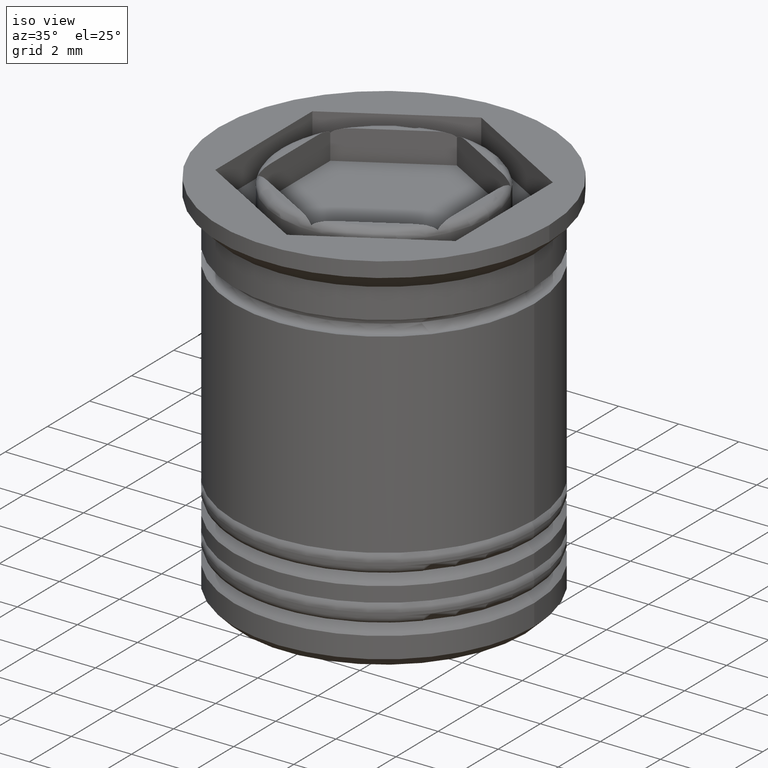
[diagram: clean part render]
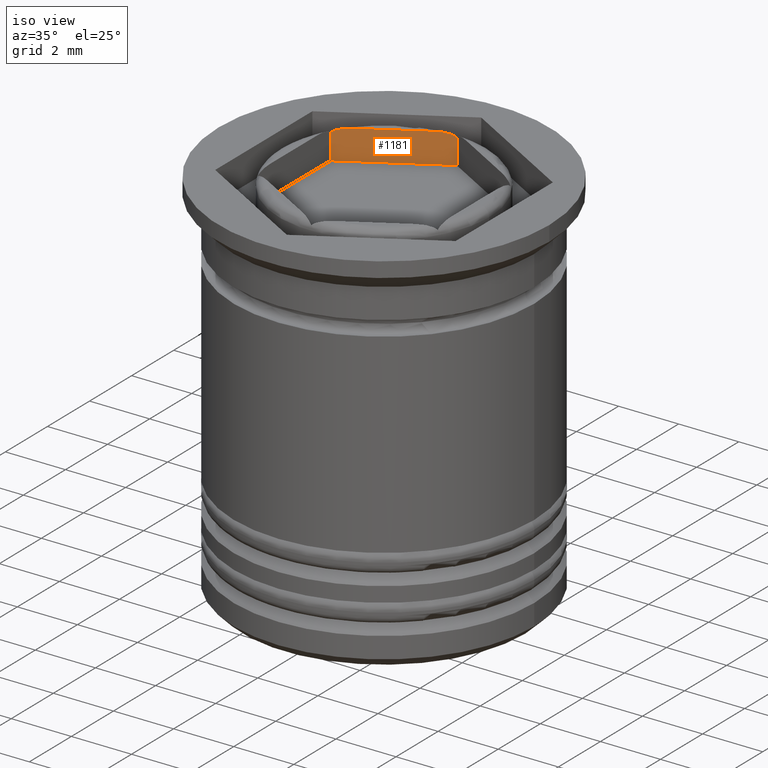
[diagram: same view with one face highlighted and labeled with its STEP entity id]
A machine part, iso view. The second image highlights one B-rep face of the part: STEP entity #1181.
In plain terms, the highlighted planar face has unit normal (-0.5, 0.866, 0).
Its self-contained STEP definition (entity closure, byte-faithful):
#19 = PLANE ( 'NONE',  #1641 ) ;
#28 = CARTESIAN_POINT ( 'NONE',  ( -3.000000000000000000, 1.732050807568877859, -10.16515138991168321 ) ) ;
#46 = DIRECTION ( 'NONE',  ( -0.000000000000000000, -0.000000000000000000, 1.000000000000000000 ) ) ;
#98 = ORIENTED_EDGE ( 'NONE', *, *, #231, .T. ) ;
#100 = CARTESIAN_POINT ( 'NONE',  ( -0.3467826759321240293, 3.263886543838044663, -0.006718191919573663837 ) ) ;
#201 = DIRECTION ( 'NONE',  ( -0.8660254037844387076, -0.4999999999999999445, 0.000000000000000000 ) ) ;
#202 = VERTEX_POINT ( 'NONE', #1986 ) ;
#231 = EDGE_CURVE ( 'NONE', #399, #1537, #539, .T. ) ;
#363 = DIRECTION ( 'NONE',  ( -0.000000000000000000, -0.000000000000000000, 1.000000000000000000 ) ) ;
#365 = CARTESIAN_POINT ( 'NONE',  ( -2.965112866681730797, 1.752192903381435851, -0.1203145750809058168 ) ) ;
#387 = VECTOR ( 'NONE', #363, 1000.000000000000000 ) ;
#399 = VERTEX_POINT ( 'NONE', #1883 ) ;
#400 = CARTESIAN_POINT ( 'NONE',  ( -0.03499328590478502365, 3.443898232100797596, -0.1202008320270840092 ) ) ;
#413 = VECTOR ( 'NONE', #921, 999.9999999999998863 ) ;
#492 = B_SPLINE_CURVE_WITH_KNOTS ( 'NONE', 3,
 ( #1490, #688, #1337, #1966, #545, #1028, #365, #1673 ),
 .UNSPECIFIED., .F., .F.,
 ( 4, 2, 2, 4 ),
 ( 1.693691732042781777E-20, 0.0003251077594065942926, 0.0004876616391098914389, 0.0006502155188131885852 ),
 .UNSPECIFIED. ) ;
#530 = ORIENTED_EDGE ( 'NONE', *, *, #1682, .F. ) ;
#539 = LINE ( 'NONE', #548, #1307 ) ;
#543 = CARTESIAN_POINT ( 'NONE',  ( -0.5356349239007045515, 3.154852647636318785, 0.000000000000000000 ) ) ;
#545 = CARTESIAN_POINT ( 'NONE',  ( -2.836116908067597198, 1.826668754811678452, -0.05305027761685764814 ) ) ;
#548 = CARTESIAN_POINT ( 'NONE',  ( -2.168404344971008868E-16, 3.464101615137754830, -10.16515138991168321 ) ) ;
#675 = EDGE_CURVE ( 'NONE', #1656, #1578, #492, .T. ) ;
#688 = CARTESIAN_POINT ( 'NONE',  ( -2.558504986048359964, 1.986948072719734837, -1.905824131322174993E-18 ) ) ;
#753 = CARTESIAN_POINT ( 'NONE',  ( -0.4414355163307774332, 3.209238700954318624, 8.506328372801310169E-16 ) ) ;
#772 = LINE ( 'NONE', #2048, #413 ) ;
#779 = ORIENTED_EDGE ( 'NONE', *, *, #1917, .T. ) ;
#883 = CARTESIAN_POINT ( 'NONE',  ( -0.07639347113135709633, 3.419995824015736208, -0.09422876642215748111 ) ) ;
#905 = CARTESIAN_POINT ( 'NONE',  ( -0.2090904032211537422, 3.343383214553053762, -0.03872241999869841661 ) ) ;
#921 = DIRECTION ( 'NONE',  ( 0.8660254037844387076, 0.4999999999999999445, -0.000000000000000000 ) ) ;
#1028 = CARTESIAN_POINT ( 'NONE',  ( -2.923120587309835372, 1.776437157180684512, -0.09397729767315254890 ) ) ;
#1082 = EDGE_CURVE ( 'NONE', #202, #399, #772, .T. ) ;
#1130 = DIRECTION ( 'NONE',  ( -0.8660254037844385966, -0.4999999999999998890, 0.000000000000000000 ) ) ;
#1159 = LINE ( 'NONE', #1478, #1711 ) ;
#1164 = DIRECTION ( 'NONE',  ( -0.4999999999999999445, 0.8660254037844387076, 0.000000000000000000 ) ) ;
#1181 = ADVANCED_FACE ( 'NONE', ( #1653 ), #19, .F. ) ;
#1213 = CARTESIAN_POINT ( 'NONE',  ( -3.000000000000000000, 1.732050807568877859, -0.1576963216159549264 ) ) ;
#1290 = CARTESIAN_POINT ( 'NONE',  ( -2.464365076099295671, 2.041299775070314126, 0.000000000000000000 ) ) ;
#1307 = VECTOR ( 'NONE', #46, 1000.000000000000000 ) ;
#1337 = CARTESIAN_POINT ( 'NONE',  ( -2.652575849777251804, 1.932636234222957494, -0.006590008935844869110 ) ) ;
#1383 = CARTESIAN_POINT ( 'NONE',  ( -2.168404344971008868E-16, 3.464101615137754830, -0.1576963216159549264 ) ) ;
#1390 = EDGE_LOOP ( 'NONE', ( #98, #779, #1776, #1974, #530, #1573 ) ) ;
#1478 = CARTESIAN_POINT ( 'NONE',  ( -2.168404344971008868E-16, 3.464101615137754830, 0.000000000000000000 ) ) ;
#1490 = CARTESIAN_POINT ( 'NONE',  ( -2.464365076099295671, 2.041299775070314126, 0.000000000000000000 ) ) ;
#1537 = VERTEX_POINT ( 'NONE', #1964 ) ;
#1573 = ORIENTED_EDGE ( 'NONE', *, *, #1082, .T. ) ;
#1578 = VERTEX_POINT ( 'NONE', #1213 ) ;
#1641 = AXIS2_PLACEMENT_3D ( 'NONE', #1791, #1164, #1130 ) ;
#1653 = FACE_OUTER_BOUND ( 'NONE', #1390, .T. ) ;
#1656 = VERTEX_POINT ( 'NONE', #1290 ) ;
#1673 = CARTESIAN_POINT ( 'NONE',  ( -3.000000000000000000, 1.732050807568877859, -0.1576963216159549264 ) ) ;
#1682 = EDGE_CURVE ( 'NONE', #202, #1578, #1953, .T. ) ;
#1699 = CARTESIAN_POINT ( 'NONE',  ( -0.1639584821700014183, 3.369440141320983351, -0.05299204151133352775 ) ) ;
#1711 = VECTOR ( 'NONE', #201, 1000.000000000000000 ) ;
#1754 = CARTESIAN_POINT ( 'NONE',  ( -0.5356349239007045515, 3.154852647636318785, 0.000000000000000000 ) ) ;
#1771 = B_SPLINE_CURVE_WITH_KNOTS ( 'NONE', 3,
 ( #1383, #400, #883, #1699, #905, #100, #753, #543 ),
 .UNSPECIFIED., .F., .F.,
 ( 4, 2, 2, 4 ),
 ( 2.825623115728058530E-19, 0.0001622701831771341629, 0.0003245403663542680548, 0.0006490807327085364349 ),
 .UNSPECIFIED. ) ;
#1776 = ORIENTED_EDGE ( 'NONE', *, *, #1793, .T. ) ;
#1791 = CARTESIAN_POINT ( 'NONE',  ( -2.168404344971008868E-16, 3.464101615137754830, -10.16515138991168321 ) ) ;
#1793 = EDGE_CURVE ( 'NONE', #2050, #1656, #1159, .T. ) ;
#1883 = CARTESIAN_POINT ( 'NONE',  ( -2.168404344971008868E-16, 3.464101615137754830, -1.000000000000000888 ) ) ;
#1917 = EDGE_CURVE ( 'NONE', #1537, #2050, #1771, .T. ) ;
#1953 = LINE ( 'NONE', #28, #387 ) ;
#1964 = CARTESIAN_POINT ( 'NONE',  ( -2.168404344971008868E-16, 3.464101615137754830, -0.1576963216159549264 ) ) ;
#1966 = CARTESIAN_POINT ( 'NONE',  ( -2.790961897719603346, 1.852739012191353840, -0.03872414846243798364 ) ) ;
#1974 = ORIENTED_EDGE ( 'NONE', *, *, #675, .T. ) ;
#1986 = CARTESIAN_POINT ( 'NONE',  ( -3.000000000000000000, 1.732050807568877859, -1.000000000000000888 ) ) ;
#2048 = CARTESIAN_POINT ( 'NONE',  ( -2.168404344971008868E-16, 3.464101615137754830, -1.000000000000000888 ) ) ;
#2050 = VERTEX_POINT ( 'NONE', #1754 ) ;